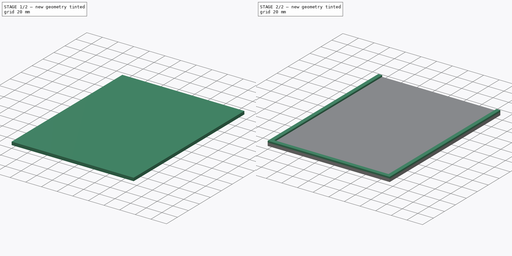
[diagram: build sequence overview — one tinted view per stage of 2, left to right]
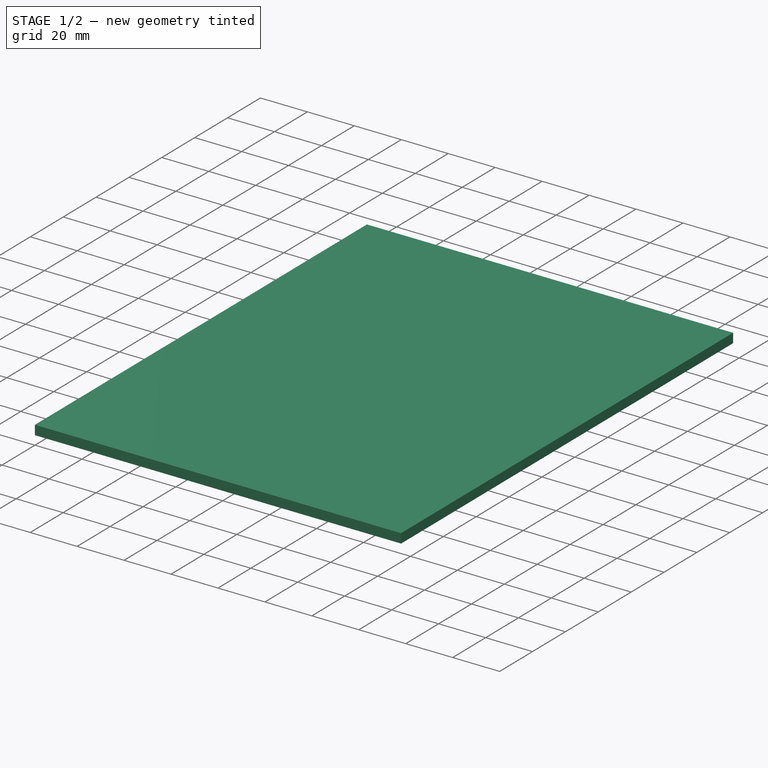
[diagram: stage 1 of 2 — iso view after this stage's code; geometry added in this stage tinted green]
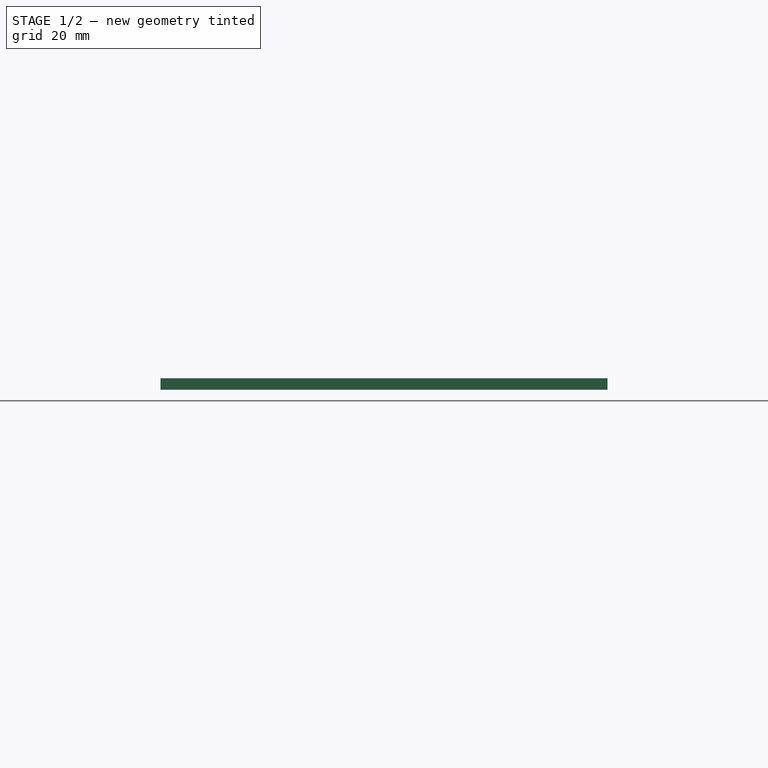
[diagram: stage 1 of 2 — front view after this stage's code; geometry added in this stage tinted green]
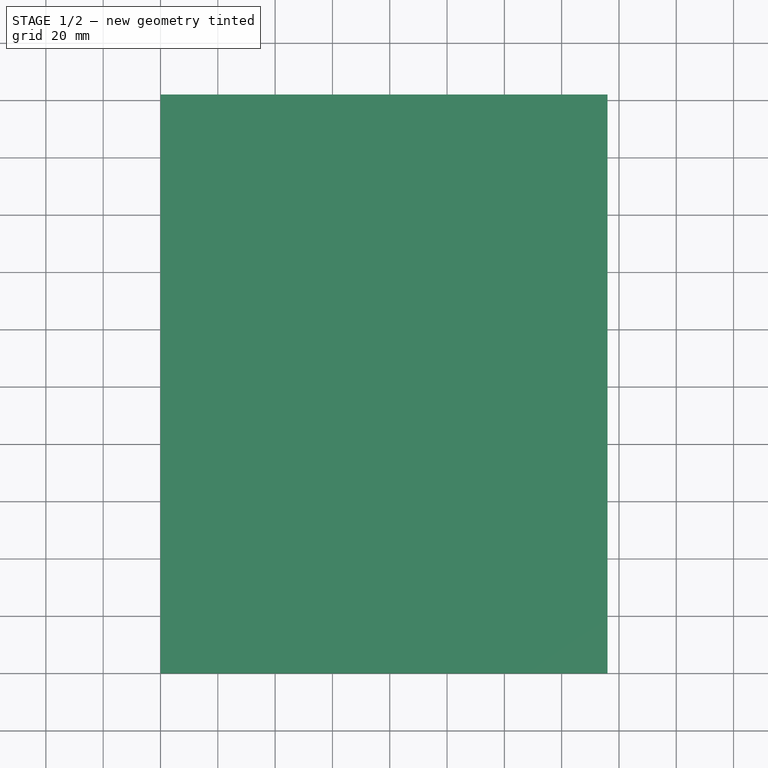
[diagram: stage 1 of 2 — top view after this stage's code; geometry added in this stage tinted green]
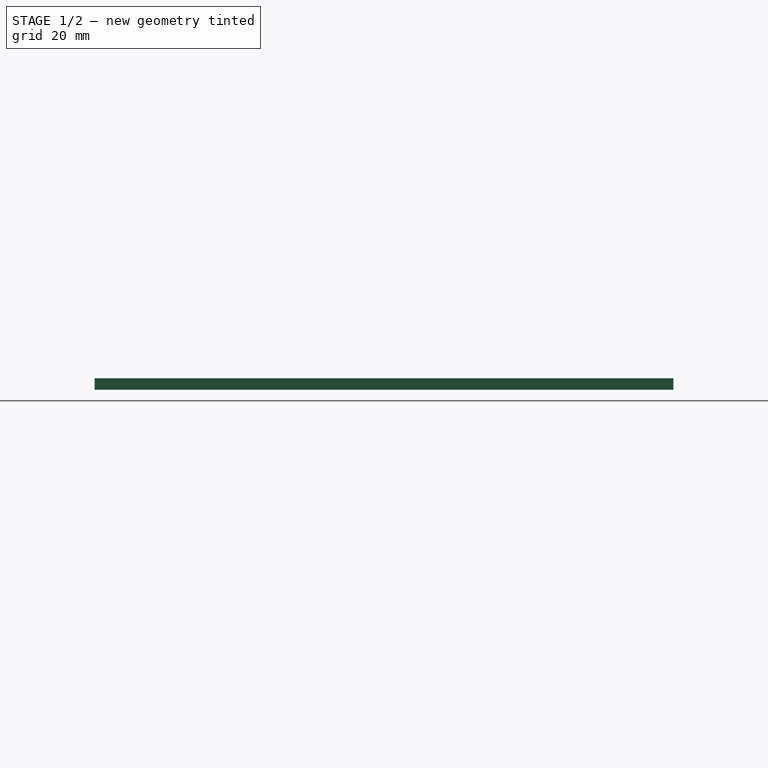
[diagram: stage 1 of 2 — right view after this stage's code; geometry added in this stage tinted green]
FCSTD DOCUMENT  (FreeCAD 0.16R5231 (Git))
Label: TankPlate
License: All rights reserved
LicenseURL: http://en.wikipedia.org/wiki/All_rights_reserved
objects: Sketcher::SketchObject×2, PartDesign::Pad×2
note: 6 computed .brp shape members not serialized (recipe doc carries the construction recipe); baked Part::Feature solids carry a one-line shape summary decoded from their .brp

FEATURE [Sketcher::SketchObject] Sketch
  sketch-geometry (4):
    g0: LineSegment StartX=0 StartY=0 StartZ=0 EndX=156 EndY=0 EndZ=0
    g1: LineSegment StartX=156 StartY=0 StartZ=0 EndX=156 EndY=202 EndZ=0
    g2: LineSegment StartX=156 StartY=202 StartZ=0 EndX=0 EndY=202 EndZ=0
    g3: LineSegment StartX=0 StartY=202 StartZ=0 EndX=0 EndY=0 EndZ=0
  constraints (11):
    c: Coincident(g0,g1)
    c: Coincident(g1,g2)
    c: Coincident(g2,g3)
    c: Coincident(g3,g0)
    c: Horizontal(g0)
    c: Horizontal(g2)
    c: Vertical(g1)
    c: Vertical(g3)
    c: Coincident(g0,g-1)
    c: DistanceX(g0) = 156
    c: DistanceY(g-1,g2) = 202
FEATURE [PartDesign::Pad] Pad  label="Pad002"
  Length = 4
  Length2 = 100
  Sketch = -> Sketch
  Type = 0
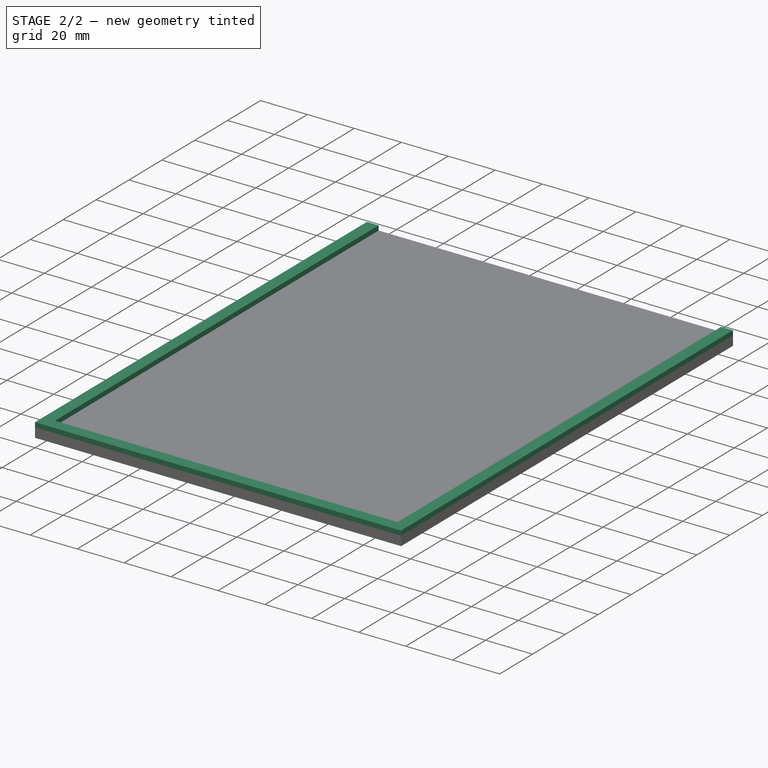
[diagram: stage 2 of 2 — iso view after this stage's code; geometry added in this stage tinted green]
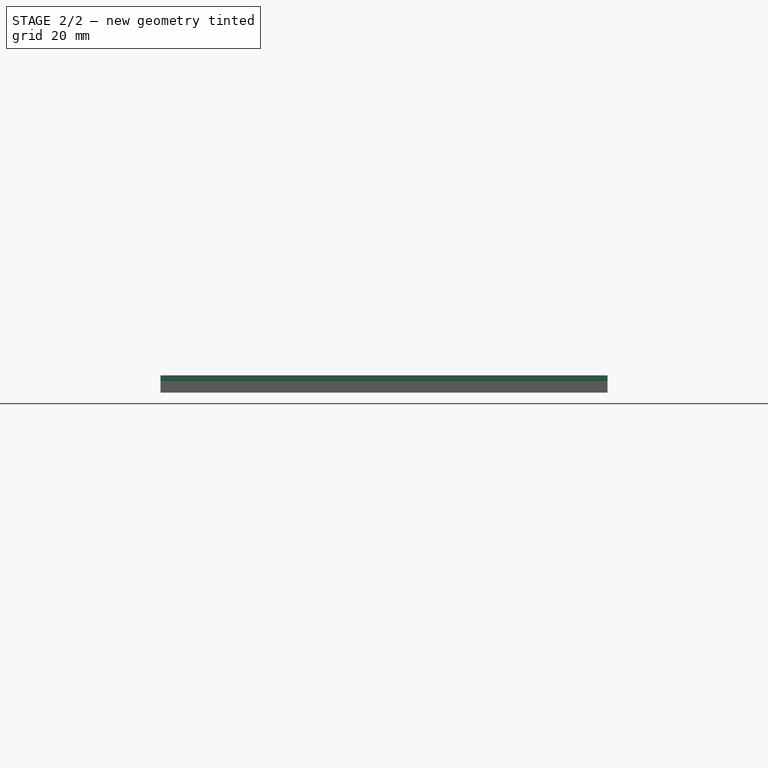
[diagram: stage 2 of 2 — front view after this stage's code; geometry added in this stage tinted green]
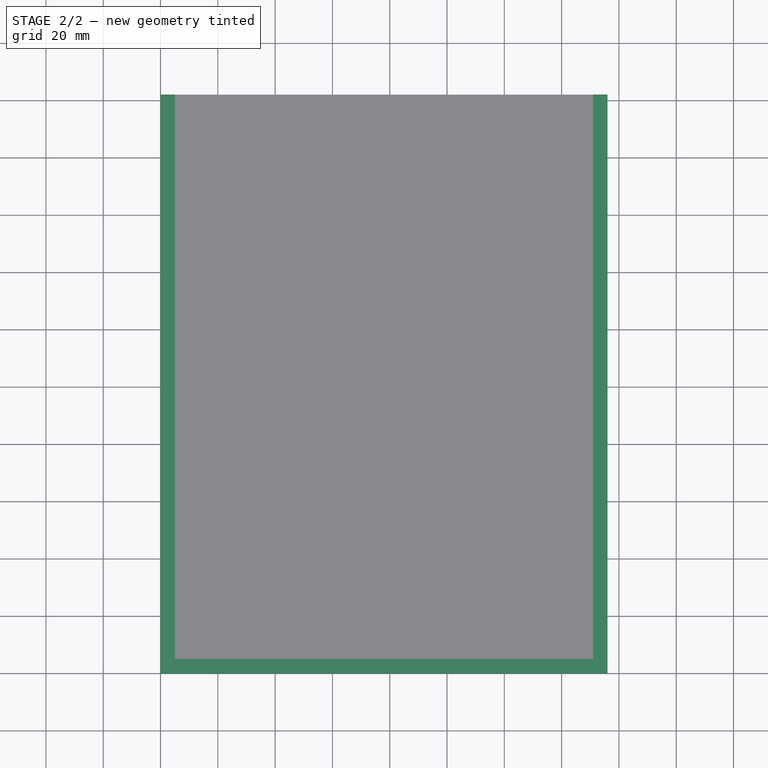
[diagram: stage 2 of 2 — top view after this stage's code; geometry added in this stage tinted green]
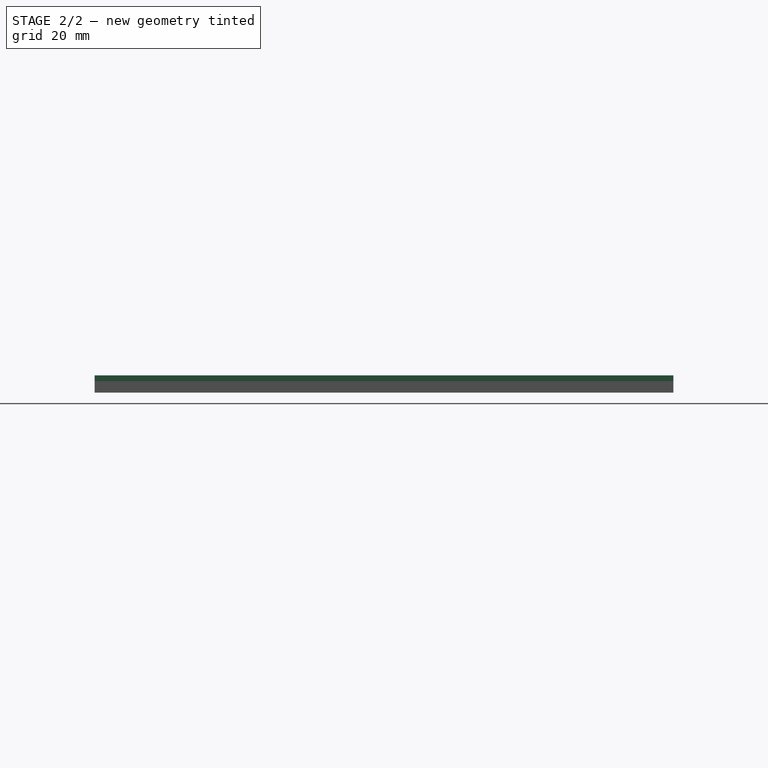
[diagram: stage 2 of 2 — right view after this stage's code; geometry added in this stage tinted green]
FEATURE [Sketcher::SketchObject] Sketch001
  ExternalGeometry = -> [Pad]
  Placement = pos=(0,0,4) rot=(0,0,1;0rad)
  Support = -> Pad [Face6]
  sketch-geometry (9):
    g0: LineSegment StartX=0 StartY=202 StartZ=0 EndX=5 EndY=202 EndZ=0
    g1: LineSegment StartX=5 StartY=202 StartZ=0 EndX=5 EndY=5 EndZ=0
    g2: LineSegment StartX=0 StartY=0 StartZ=0 EndX=0 EndY=202 EndZ=0
    g3: LineSegment StartX=151 StartY=5 StartZ=0 EndX=5 EndY=5 EndZ=0
    g4: LineSegment StartX=151 StartY=202 StartZ=0 EndX=156 EndY=202 EndZ=0
    g5: LineSegment StartX=156 StartY=202 StartZ=0 EndX=156 EndY=0 EndZ=0
    g6: LineSegment StartX=151 StartY=5 StartZ=0 EndX=151 EndY=202 EndZ=0
    g7: LineSegment StartX=0 StartY=0 StartZ=0 EndX=156 EndY=0 EndZ=0
    g8: LineSegment [constr] StartX=5 StartY=5 StartZ=0 EndX=5 EndY=0 EndZ=0
  constraints (25):
    c: Coincident(g0,g1)
    c: Coincident(g2,g0)
    c: Horizontal(g0)
    c: Vertical(g1)
    c: Vertical(g2)
    c: Horizontal(g3)
    c: Coincident(g4,g5)
    c: Coincident(g6,g4)
    c: Horizontal(g4)
    c: Vertical(g5)
    c: Vertical(g6)
    c: Coincident(g7,g2)
    c: Horizontal(g7)
    c: Coincident(g5,g7)
    c: Coincident(g3,g6)
    c: Coincident(g1,g3)
    c: Coincident(g8,g1)
    c: PointOnObject(g8,g7)
    c: Vertical(g8)
    c: Equal(g0,g8)
    c: Equal(g8,g4)
    c: DistanceX(g0) = 5
    c: Coincident(g0,g-3)
    c: Coincident(g2,g-1)
    c: Coincident(g4,g-4)
FEATURE [PartDesign::Pad] Pad001  label="TankPlate"
  Length = 2
  Length2 = 100
  Sketch = -> Sketch001
  Type = 0
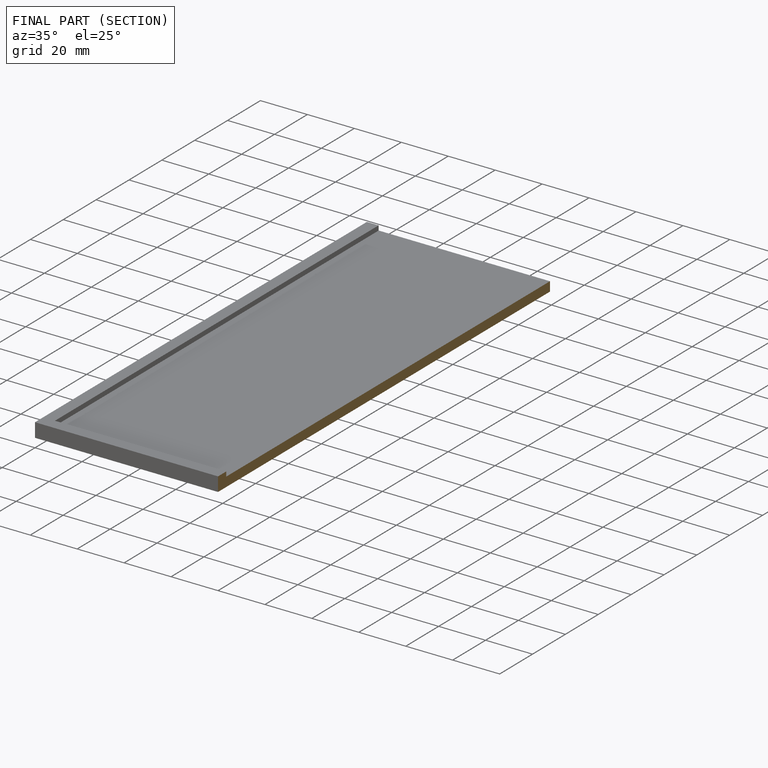
[diagram: finished part — half-section view (interior)]
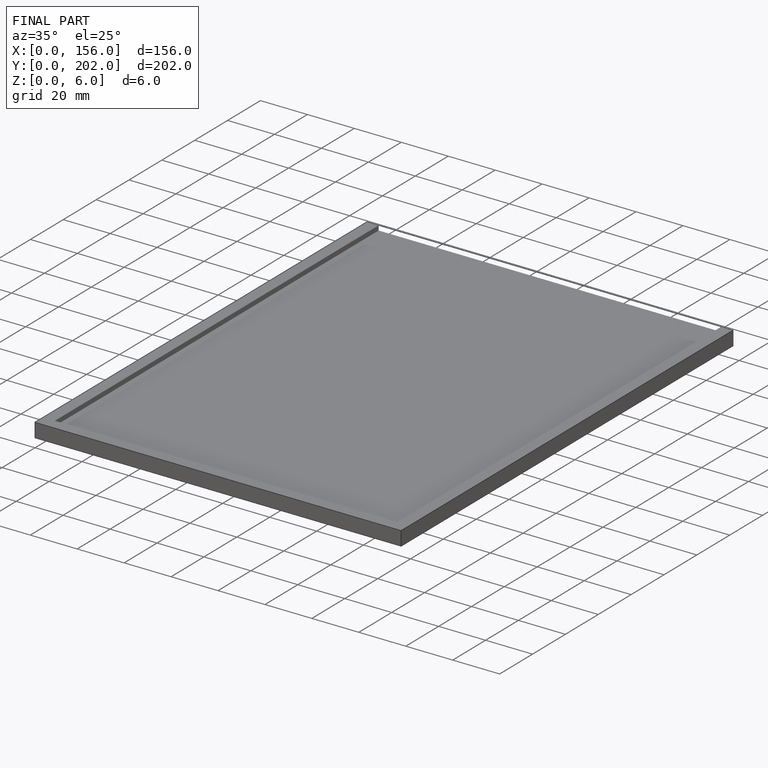
[diagram: finished part — iso view with bounding-box wireframe]
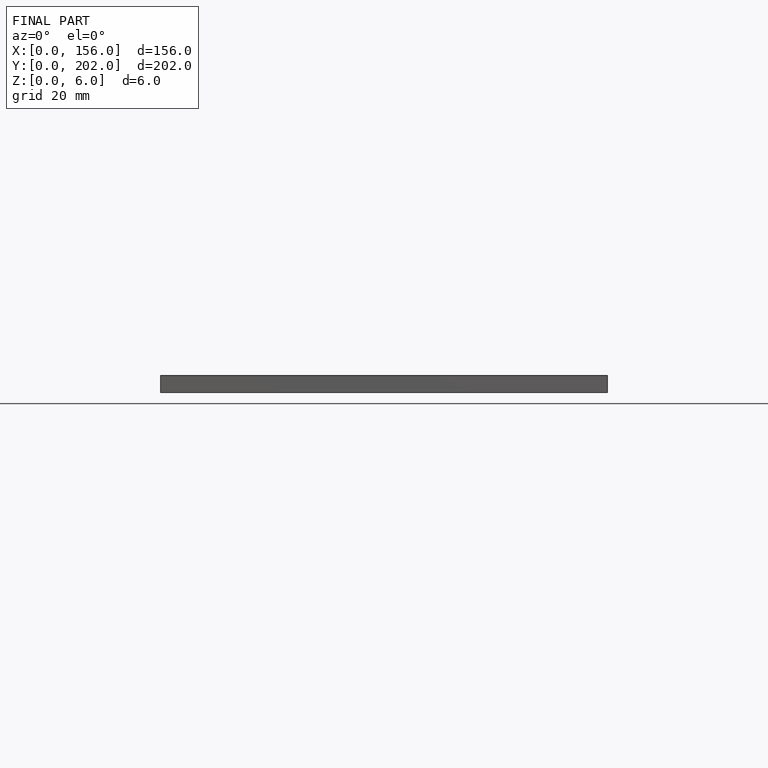
[diagram: finished part — front view with bounding-box wireframe]
